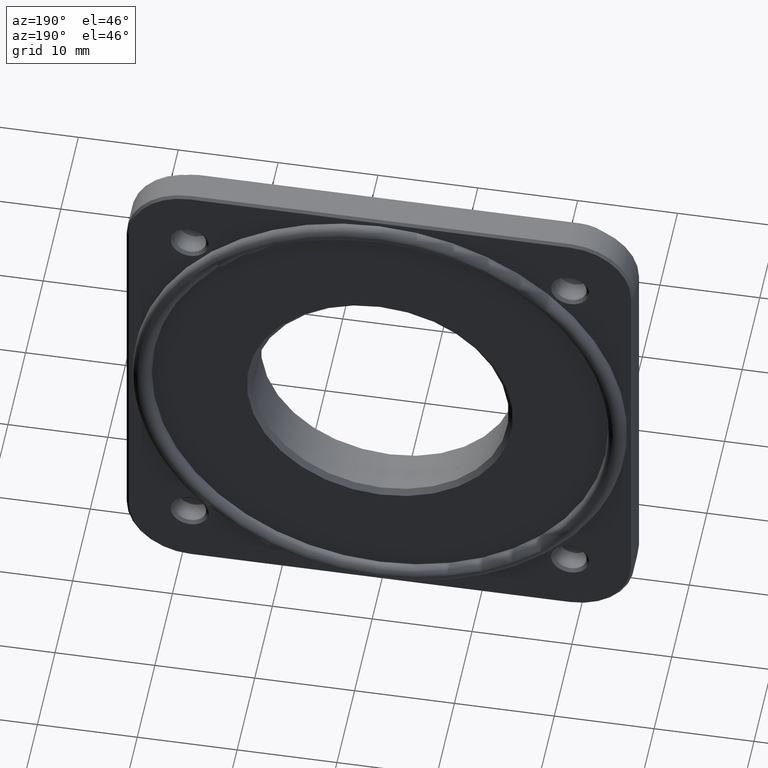
[diagram: clean part render]
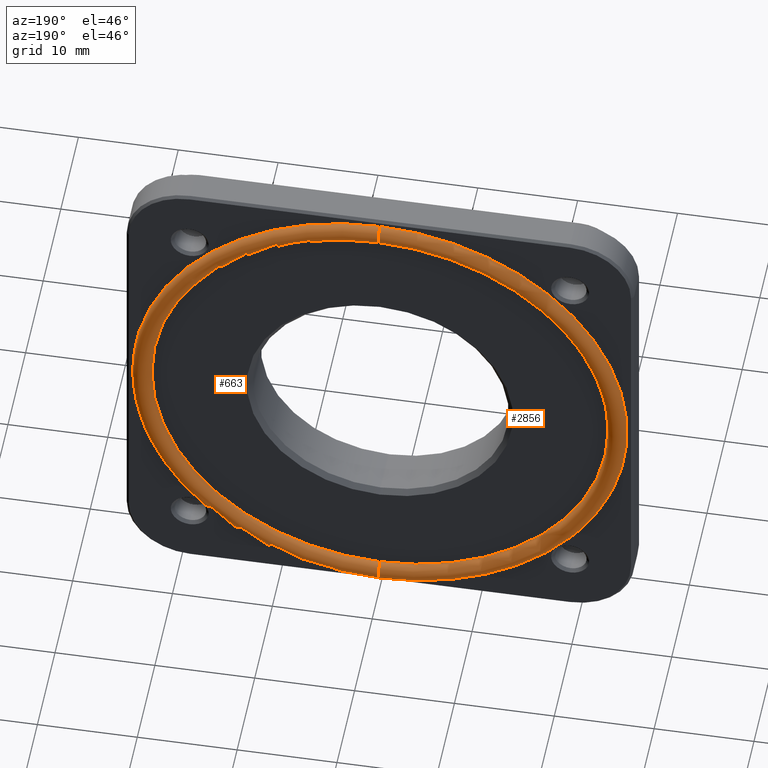
[diagram: same view with one multi-face feature highlighted, each face labeled with its STEP entity id]
A machine part, auxiliary view. The highlighted faces form ONE feature: a constant-radius fillet chain: 2 tangent blend faces with common blend radius 0.95 mm. The faces share edges in the B-rep.
Their STEP definitions:
[1] entity #663 (Torus):
#126 = DIRECTION ( 'NONE',  ( 0.000000000000000000, 0.000000000000000000, 1.000000000000000000 ) ) ;
#172 = DIRECTION ( 'NONE',  ( -0.000000000000000000, 1.000000000000000000, -0.000000000000000000 ) ) ;
#663 = ADVANCED_FACE ( 'NONE', ( #3033 ), #767, .T. ) ;
#673 = EDGE_CURVE ( 'NONE', #1084, #2181, #1021, .T. ) ;
#767 = TOROIDAL_SURFACE ( 'NONE', #2267, 23.80000000000000071, 0.9500000000000008438 ) ;
#806 = CARTESIAN_POINT ( 'NONE',  ( -0.01499118462165690245, 5.599999999999996980, -23.79948581750387859 ) ) ;
#896 = EDGE_LOOP ( 'NONE', ( #1379, #3662, #3713, #990 ) ) ;
#990 = ORIENTED_EDGE ( 'NONE', *, *, #673, .F. ) ;
#1011 = CARTESIAN_POINT ( 'NONE',  ( -0.01499118462165678449, 5.599999999999996980, -24.74948581750387788 ) ) ;
#1021 = CIRCLE ( 'NONE', #2466, 22.85000000000000142 ) ;
#1084 = VERTEX_POINT ( 'NONE', #3501 ) ;
#1141 = CIRCLE ( 'NONE', #2624, 0.9499999999999995115 ) ;
#1142 = EDGE_CURVE ( 'NONE', #1158, #1084, #1141, .T. ) ;
#1158 = VERTEX_POINT ( 'NONE', #1935 ) ;
#1360 = DIRECTION ( 'NONE',  ( -0.000000000000000000, 1.000000000000000000, -0.000000000000000000 ) ) ;
#1364 = DIRECTION ( 'NONE',  ( -1.000000000000000000, 0.000000000000000000, 0.000000000000000000 ) ) ;
#1379 = ORIENTED_EDGE ( 'NONE', *, *, #1142, .F. ) ;
#1482 = DIRECTION ( 'NONE',  ( 1.000000000000000000, 0.000000000000000000, 1.224646799147353207E-16 ) ) ;
#1700 = CARTESIAN_POINT ( 'NONE',  ( -0.01499118462165701868, 5.599999999999996980, -22.84948581750387930 ) ) ;
#1935 = CARTESIAN_POINT ( 'NONE',  ( -0.01499118462165981679, 5.599999999999996980, 24.75051418249612212 ) ) ;
#2112 = DIRECTION ( 'NONE',  ( 1.230426807590457931E-16, 0.000000000000000000, -1.000000000000000000 ) ) ;
#2181 = VERTEX_POINT ( 'NONE', #1700 ) ;
#2267 = AXIS2_PLACEMENT_3D ( 'NONE', #2392, #3030, #3620 ) ;
#2378 = DIRECTION ( 'NONE',  ( 0.000000000000000000, 0.000000000000000000, 1.000000000000000000 ) ) ;
#2392 = CARTESIAN_POINT ( 'NONE',  ( -0.01499118462165981679, 5.599999999999996980, 0.0005141824961227792158 ) ) ;
#2466 = AXIS2_PLACEMENT_3D ( 'NONE', #3920, #172, #2378 ) ;
#2618 = DIRECTION ( 'NONE',  ( 0.000000000000000000, 0.000000000000000000, 1.000000000000000000 ) ) ;
#2624 = AXIS2_PLACEMENT_3D ( 'NONE', #3482, #1364, #2618 ) ;
#2888 = CARTESIAN_POINT ( 'NONE',  ( -0.01499118462165981679, 5.599999999999996980, 0.0005141824961227792158 ) ) ;
#2931 = CIRCLE ( 'NONE', #3465, 0.9499999999999995115 ) ;
#3030 = DIRECTION ( 'NONE',  ( -0.000000000000000000, 1.000000000000000000, -0.000000000000000000 ) ) ;
#3033 = FACE_OUTER_BOUND ( 'NONE', #896, .T. ) ;
#3202 = EDGE_CURVE ( 'NONE', #3596, #2181, #2931, .T. ) ;
#3350 = CIRCLE ( 'NONE', #3560, 24.75000000000000000 ) ;
#3465 = AXIS2_PLACEMENT_3D ( 'NONE', #806, #1482, #2112 ) ;
#3482 = CARTESIAN_POINT ( 'NONE',  ( -0.01499118462165981679, 5.599999999999996980, 23.80051418249612283 ) ) ;
#3501 = CARTESIAN_POINT ( 'NONE',  ( -0.01499118462165981679, 5.599999999999996980, 22.85051418249612354 ) ) ;
#3560 = AXIS2_PLACEMENT_3D ( 'NONE', #2888, #1360, #126 ) ;
#3596 = VERTEX_POINT ( 'NONE', #1011 ) ;
#3620 = DIRECTION ( 'NONE',  ( 0.000000000000000000, 0.000000000000000000, 1.000000000000000000 ) ) ;
#3662 = ORIENTED_EDGE ( 'NONE', *, *, #3892, .T. ) ;
#3713 = ORIENTED_EDGE ( 'NONE', *, *, #3202, .T. ) ;
#3892 = EDGE_CURVE ( 'NONE', #1158, #3596, #3350, .T. ) ;
#3920 = CARTESIAN_POINT ( 'NONE',  ( -0.01499118462165981679, 5.599999999999996980, 0.0005141824961227792158 ) ) ;
[2] entity #2856 (Torus):
#64 = AXIS2_PLACEMENT_3D ( 'NONE', #1058, #390, #3248 ) ;
#355 = CARTESIAN_POINT ( 'NONE',  ( -0.01499118462165981679, 5.599999999999996980, 0.0005141824961227792158 ) ) ;
#390 = DIRECTION ( 'NONE',  ( -0.000000000000000000, 1.000000000000000000, -0.000000000000000000 ) ) ;
#403 = ORIENTED_EDGE ( 'NONE', *, *, #3875, .F. ) ;
#708 = AXIS2_PLACEMENT_3D ( 'NONE', #2945, #2928, #709 ) ;
#709 = DIRECTION ( 'NONE',  ( 0.000000000000000000, 0.000000000000000000, 1.000000000000000000 ) ) ;
#806 = CARTESIAN_POINT ( 'NONE',  ( -0.01499118462165690245, 5.599999999999996980, -23.79948581750387859 ) ) ;
#882 = AXIS2_PLACEMENT_3D ( 'NONE', #355, #1320, #1952 ) ;
#1011 = CARTESIAN_POINT ( 'NONE',  ( -0.01499118462165678449, 5.599999999999996980, -24.74948581750387788 ) ) ;
#1040 = TOROIDAL_SURFACE ( 'NONE', #882, 23.80000000000000071, 0.9500000000000008438 ) ;
#1058 = CARTESIAN_POINT ( 'NONE',  ( -0.01499118462165981679, 5.599999999999996980, 0.0005141824961227792158 ) ) ;
#1084 = VERTEX_POINT ( 'NONE', #3501 ) ;
#1141 = CIRCLE ( 'NONE', #2624, 0.9499999999999995115 ) ;
#1142 = EDGE_CURVE ( 'NONE', #1158, #1084, #1141, .T. ) ;
#1144 = EDGE_LOOP ( 'NONE', ( #2482, #1943, #2184, #403 ) ) ;
#1158 = VERTEX_POINT ( 'NONE', #1935 ) ;
#1320 = DIRECTION ( 'NONE',  ( -0.000000000000000000, 1.000000000000000000, -0.000000000000000000 ) ) ;
#1364 = DIRECTION ( 'NONE',  ( -1.000000000000000000, 0.000000000000000000, 0.000000000000000000 ) ) ;
#1482 = DIRECTION ( 'NONE',  ( 1.000000000000000000, 0.000000000000000000, 1.224646799147353207E-16 ) ) ;
#1700 = CARTESIAN_POINT ( 'NONE',  ( -0.01499118462165701868, 5.599999999999996980, -22.84948581750387930 ) ) ;
#1935 = CARTESIAN_POINT ( 'NONE',  ( -0.01499118462165981679, 5.599999999999996980, 24.75051418249612212 ) ) ;
#1943 = ORIENTED_EDGE ( 'NONE', *, *, #3721, .T. ) ;
#1952 = DIRECTION ( 'NONE',  ( 0.000000000000000000, 0.000000000000000000, 1.000000000000000000 ) ) ;
#2112 = DIRECTION ( 'NONE',  ( 1.230426807590457931E-16, 0.000000000000000000, -1.000000000000000000 ) ) ;
#2181 = VERTEX_POINT ( 'NONE', #1700 ) ;
#2184 = ORIENTED_EDGE ( 'NONE', *, *, #1142, .T. ) ;
#2289 = CIRCLE ( 'NONE', #708, 24.75000000000000000 ) ;
#2482 = ORIENTED_EDGE ( 'NONE', *, *, #3202, .F. ) ;
#2618 = DIRECTION ( 'NONE',  ( 0.000000000000000000, 0.000000000000000000, 1.000000000000000000 ) ) ;
#2624 = AXIS2_PLACEMENT_3D ( 'NONE', #3482, #1364, #2618 ) ;
#2856 = ADVANCED_FACE ( 'NONE', ( #3935 ), #1040, .T. ) ;
#2928 = DIRECTION ( 'NONE',  ( -0.000000000000000000, 1.000000000000000000, -0.000000000000000000 ) ) ;
#2931 = CIRCLE ( 'NONE', #3465, 0.9499999999999995115 ) ;
#2945 = CARTESIAN_POINT ( 'NONE',  ( -0.01499118462165981679, 5.599999999999996980, 0.0005141824961227792158 ) ) ;
#3202 = EDGE_CURVE ( 'NONE', #3596, #2181, #2931, .T. ) ;
#3248 = DIRECTION ( 'NONE',  ( 0.000000000000000000, 0.000000000000000000, 1.000000000000000000 ) ) ;
#3465 = AXIS2_PLACEMENT_3D ( 'NONE', #806, #1482, #2112 ) ;
#3482 = CARTESIAN_POINT ( 'NONE',  ( -0.01499118462165981679, 5.599999999999996980, 23.80051418249612283 ) ) ;
#3501 = CARTESIAN_POINT ( 'NONE',  ( -0.01499118462165981679, 5.599999999999996980, 22.85051418249612354 ) ) ;
#3558 = CIRCLE ( 'NONE', #64, 22.85000000000000142 ) ;
#3596 = VERTEX_POINT ( 'NONE', #1011 ) ;
#3721 = EDGE_CURVE ( 'NONE', #3596, #1158, #2289, .T. ) ;
#3875 = EDGE_CURVE ( 'NONE', #2181, #1084, #3558, .T. ) ;
#3935 = FACE_OUTER_BOUND ( 'NONE', #1144, .T. ) ;